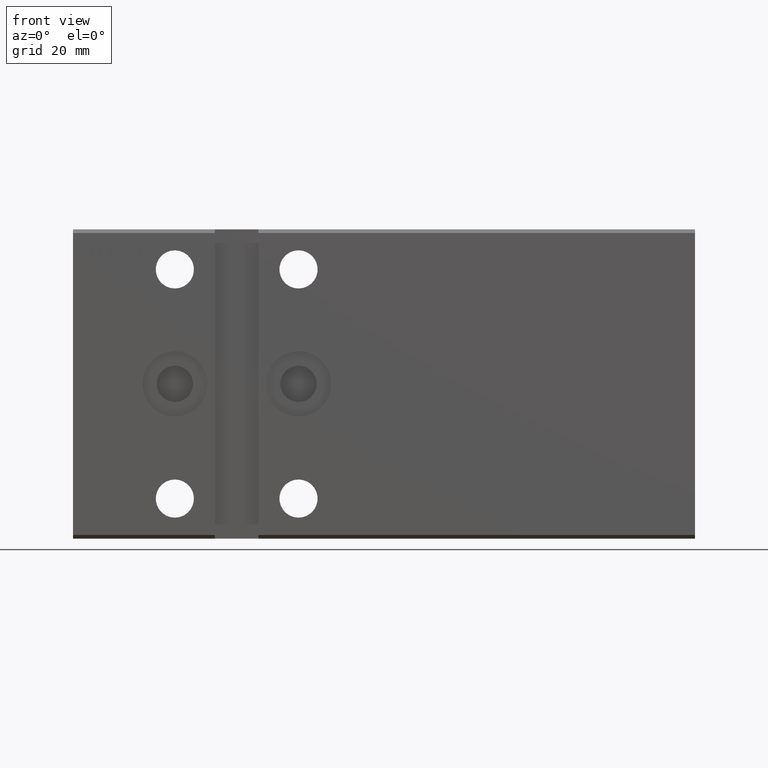
[diagram: clean part render]
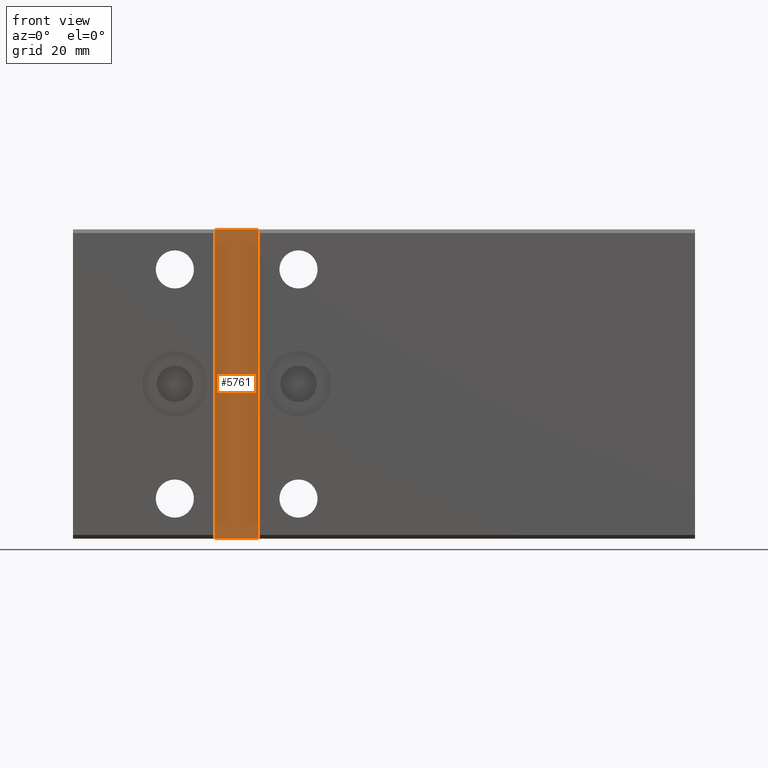
[diagram: same view with one face highlighted and labeled with its STEP entity id]
A machine part, front view. The second image highlights one B-rep face of the part: STEP entity #5761.
In plain terms, the highlighted planar face has unit normal (0, -1, 0).
Its self-contained STEP definition (entity closure, byte-faithful):
#199 = VECTOR ( 'NONE', #20373, 1000.000000000000000 ) ;
#321 = LINE ( 'NONE', #28282, #35478 ) ;
#523 = PLANE ( 'NONE',  #2665 ) ;
#932 = DIRECTION ( 'NONE',  ( 1.000000000000000000, 0.000000000000000000, 0.000000000000000000 ) ) ;
#1130 = LINE ( 'NONE', #10780, #8404 ) ;
#1454 = CARTESIAN_POINT ( 'NONE',  ( 39.00000000000000000, -29.50000000000000000, 42.49999999999999289 ) ) ;
#2442 = CARTESIAN_POINT ( 'NONE',  ( 51.00000000000000711, -29.50000000000000000, -42.50000000000000711 ) ) ;
#2665 = AXIS2_PLACEMENT_3D ( 'NONE', #22514, #34644, #31565 ) ;
#3087 = EDGE_CURVE ( 'NONE', #4589, #6773, #37799, .T. ) ;
#4361 = CARTESIAN_POINT ( 'NONE',  ( 39.00000000000000000, -29.50000000000000000, 42.49999999999999289 ) ) ;
#4589 = VERTEX_POINT ( 'NONE', #2442 ) ;
#5250 = VERTEX_POINT ( 'NONE', #4361 ) ;
#5707 = EDGE_CURVE ( 'NONE', #17136, #4589, #321, .T. ) ;
#5761 = ADVANCED_FACE ( 'NONE', ( #16145 ), #523, .T. ) ;
#6773 = VERTEX_POINT ( 'NONE', #29544 ) ;
#8404 = VECTOR ( 'NONE', #13850, 1000.000000000000000 ) ;
#10780 = CARTESIAN_POINT ( 'NONE',  ( 39.00000000000000000, -29.50000000000000000, 42.49999999999999289 ) ) ;
#11403 = ORIENTED_EDGE ( 'NONE', *, *, #3087, .T. ) ;
#12602 = CARTESIAN_POINT ( 'NONE',  ( 39.00000000000000711, -29.50000000000000000, -42.50000000000000711 ) ) ;
#13850 = DIRECTION ( 'NONE',  ( 8.163404592832032733E-17, 0.000000000000000000, -1.000000000000000000 ) ) ;
#14128 = EDGE_CURVE ( 'NONE', #6773, #5250, #39277, .T. ) ;
#15140 = VECTOR ( 'NONE', #16008, 1000.000000000000000 ) ;
#16008 = DIRECTION ( 'NONE',  ( -1.632680918566406547E-16, -0.000000000000000000, 1.000000000000000000 ) ) ;
#16145 = FACE_OUTER_BOUND ( 'NONE', #33722, .T. ) ;
#16323 = ORIENTED_EDGE ( 'NONE', *, *, #14128, .T. ) ;
#17136 = VERTEX_POINT ( 'NONE', #12602 ) ;
#20373 = DIRECTION ( 'NONE',  ( -1.000000000000000000, -0.000000000000000000, -0.000000000000000000 ) ) ;
#22514 = CARTESIAN_POINT ( 'NONE',  ( 0.000000000000000000, -29.50000000000000000, 1.101411730778925047E-16 ) ) ;
#28282 = CARTESIAN_POINT ( 'NONE',  ( 39.00000000000000711, -29.50000000000000000, -42.50000000000000711 ) ) ;
#29544 = CARTESIAN_POINT ( 'NONE',  ( 51.00000000000000000, -29.50000000000000000, 42.49999999999999289 ) ) ;
#29706 = ORIENTED_EDGE ( 'NONE', *, *, #34077, .T. ) ;
#31565 = DIRECTION ( 'NONE',  ( 0.000000000000000000, -0.000000000000000000, -1.000000000000000000 ) ) ;
#33722 = EDGE_LOOP ( 'NONE', ( #11403, #16323, #29706, #34279 ) ) ;
#34077 = EDGE_CURVE ( 'NONE', #5250, #17136, #1130, .T. ) ;
#34279 = ORIENTED_EDGE ( 'NONE', *, *, #5707, .T. ) ;
#34644 = DIRECTION ( 'NONE',  ( 0.000000000000000000, -1.000000000000000000, 0.000000000000000000 ) ) ;
#35478 = VECTOR ( 'NONE', #932, 1000.000000000000000 ) ;
#37192 = CARTESIAN_POINT ( 'NONE',  ( 51.00000000000000000, -29.50000000000000000, 42.49999999999999289 ) ) ;
#37799 = LINE ( 'NONE', #37192, #15140 ) ;
#39277 = LINE ( 'NONE', #1454, #199 ) ;